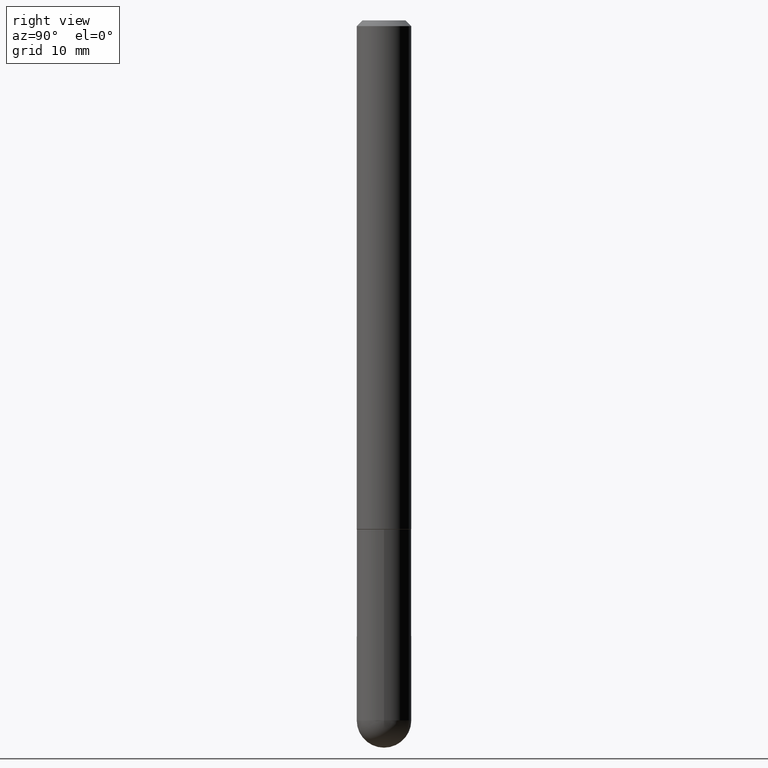
[diagram: clean part render]
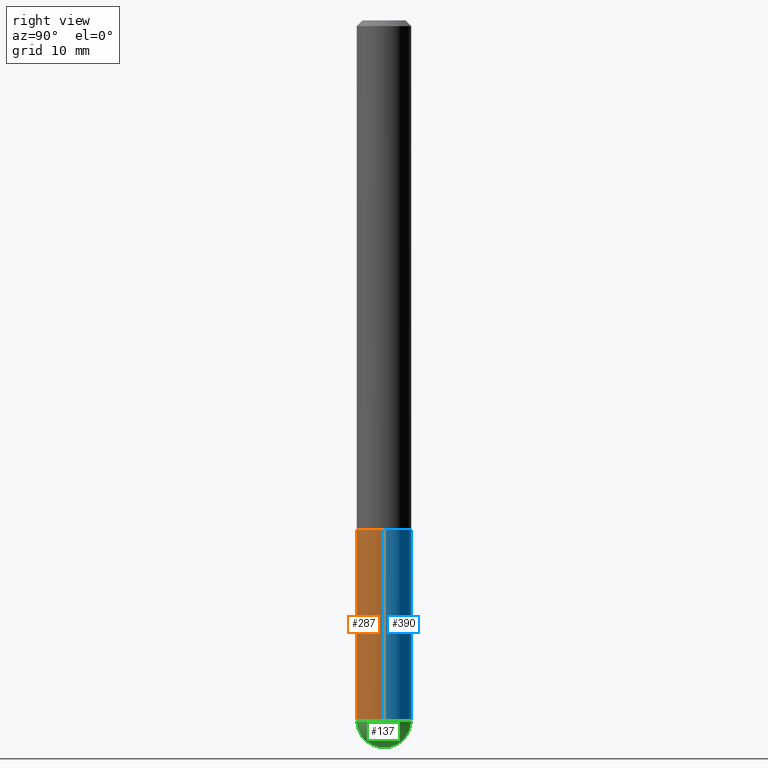
[diagram: same view with three faces highlighted in distinct colors, each labeled with its STEP entity id]
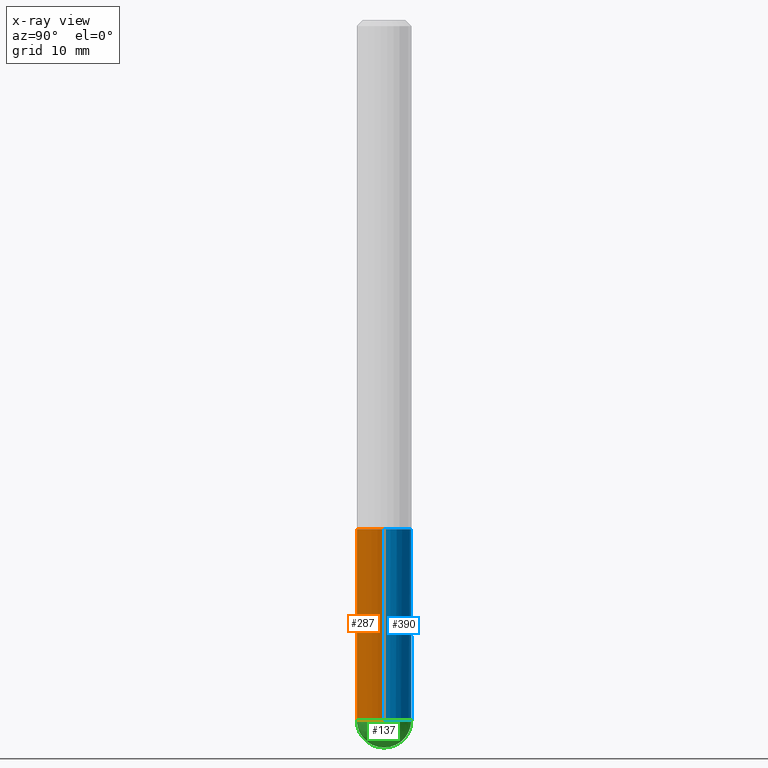
[diagram: x-ray of the same camera — body ghosted, the three highlighted faces saturated]
A machine part, right view with three faces highlighted in distinct colors.
The next image is the same camera in x-ray (body ghosted, the three faces saturated) — at least one of them is partly hidden behind the body in this view.
Their STEP definitions:

[orange] entity #287 — the highlighted cylindrical surface (edge-blend (fillet) strip) has radius 2.3813 mm, axis along (-0, 0, 1).
#6 = DIRECTION ( 'NONE',  ( 1.000000000000000000, -6.982962677686263555E-15, 0.000000000000000000 ) ) ;
#11 = EDGE_LOOP ( 'NONE', ( #189, #75, #196, #110, #290 ) ) ;
#27 = CARTESIAN_POINT ( 'NONE',  ( 0.000000000000000000, 0.000000000000000000, 0.000000000000000000 ) ) ;
#30 = CARTESIAN_POINT ( 'NONE',  ( 0.09374999999999998612, -6.764745094008592175E-15, -1.750000000000000222 ) ) ;
#32 = LINE ( 'NONE', #303, #354 ) ;
#52 = CYLINDRICAL_SURFACE ( 'NONE', #347, 0.09375000000000002776 ) ;
#54 = CARTESIAN_POINT ( 'NONE',  ( 5.884409314882984936E-29, -8.401376971591317641E-15, -2.406249999999999556 ) ) ;
#71 = AXIS2_PLACEMENT_3D ( 'NONE', #54, #118, #299 ) ;
#75 = ORIENTED_EDGE ( 'NONE', *, *, #111, .T. ) ;
#110 = ORIENTED_EDGE ( 'NONE', *, *, #185, .T. ) ;
#111 = EDGE_CURVE ( 'NONE', #223, #362, #334, .T. ) ;
#118 = DIRECTION ( 'NONE',  ( -2.445468806185136597E-29, 3.491481338843145583E-15, 1.000000000000000000 ) ) ;
#123 = CARTESIAN_POINT ( 'NONE',  ( 4.279570410823989044E-29, -6.110092342975505460E-15, -1.750000000000000222 ) ) ;
#127 = CIRCLE ( 'NONE', #262, 0.09375000000000005551 ) ;
#132 = CARTESIAN_POINT ( 'NONE',  ( 5.884409314882984936E-29, -8.401376971591317641E-15, -2.406249999999999556 ) ) ;
#138 = CARTESIAN_POINT ( 'NONE',  ( -0.09374999999999998612, -6.589600842508317626E-15, -1.750000000000000222 ) ) ;
#153 = DIRECTION ( 'NONE',  ( 1.000000000000000000, -6.982962677686265922E-15, 4.876176775795935793E-29 ) ) ;
#160 = CARTESIAN_POINT ( 'NONE',  ( 0.09375000000000002776, -6.546527510330876027E-16, 4.571415727308691207E-30 ) ) ;
#185 = EDGE_CURVE ( 'NONE', #197, #352, #215, .T. ) ;
#189 = ORIENTED_EDGE ( 'NONE', *, *, #392, .F. ) ;
#196 = ORIENTED_EDGE ( 'NONE', *, *, #250, .T. ) ;
#197 = VERTEX_POINT ( 'NONE', #316 ) ;
#210 = DIRECTION ( 'NONE',  ( -2.445468806185136877E-29, 3.491481338843145188E-15, 1.000000000000000000 ) ) ;
#215 = LINE ( 'NONE', #160, #297 ) ;
#217 = CARTESIAN_POINT ( 'NONE',  ( -0.09375000000000005551, -6.589600842508317626E-15, -2.406249999999999556 ) ) ;
#223 = VERTEX_POINT ( 'NONE', #217 ) ;
#233 = DIRECTION ( 'NONE',  ( -2.445468806185136597E-29, 3.491481338843145583E-15, 1.000000000000000000 ) ) ;
#244 = DIRECTION ( 'NONE',  ( -2.445468806185136597E-29, 3.491481338843145583E-15, 1.000000000000000000 ) ) ;
#250 = EDGE_CURVE ( 'NONE', #362, #197, #127, .T. ) ;
#253 = DIRECTION ( 'NONE',  ( -2.445468806185136597E-29, 3.491481338843145583E-15, 1.000000000000000000 ) ) ;
#262 = AXIS2_PLACEMENT_3D ( 'NONE', #132, #253, #384 ) ;
#263 = VERTEX_POINT ( 'NONE', #138 ) ;
#281 = CARTESIAN_POINT ( 'NONE',  ( -6.661338147750378165E-16, -0.09375000000000881240, -2.406249999999999556 ) ) ;
#282 = DIRECTION ( 'NONE',  ( -2.445468806185136877E-29, 3.491481338843145188E-15, 1.000000000000000000 ) ) ;
#287 = ADVANCED_FACE ( 'NONE', ( #397 ), #52, .T. ) ;
#290 = ORIENTED_EDGE ( 'NONE', *, *, #383, .F. ) ;
#297 = VECTOR ( 'NONE', #282, 39.37007874015748143 ) ;
#299 = DIRECTION ( 'NONE',  ( 1.000000000000000000, -6.982962677686258033E-15, 0.000000000000000000 ) ) ;
#303 = CARTESIAN_POINT ( 'NONE',  ( -0.09375000000000002776, 6.661338147750941215E-16, -4.611501647113975397E-30 ) ) ;
#316 = CARTESIAN_POINT ( 'NONE',  ( 0.09375000000000005551, -7.910387408316499054E-15, -2.406249999999999556 ) ) ;
#334 = CIRCLE ( 'NONE', #71, 0.09375000000000005551 ) ;
#336 = AXIS2_PLACEMENT_3D ( 'NONE', #123, #244, #6 ) ;
#347 = AXIS2_PLACEMENT_3D ( 'NONE', #27, #233, #153 ) ;
#352 = VERTEX_POINT ( 'NONE', #30 ) ;
#354 = VECTOR ( 'NONE', #210, 39.37007874015748143 ) ;
#362 = VERTEX_POINT ( 'NONE', #281 ) ;
#383 = EDGE_CURVE ( 'NONE', #263, #352, #389, .T. ) ;
#384 = DIRECTION ( 'NONE',  ( 1.000000000000000000, -6.982962677686258033E-15, 0.000000000000000000 ) ) ;
#389 = CIRCLE ( 'NONE', #336, 0.09374999999999998612 ) ;
#392 = EDGE_CURVE ( 'NONE', #223, #263, #32, .T. ) ;
#397 = FACE_OUTER_BOUND ( 'NONE', #11, .T. ) ;

[blue] entity #390 — the highlighted cylindrical surface (edge-blend (fillet) strip) has radius 2.3813 mm, axis along (-0, 0, 1).
#1 = AXIS2_PLACEMENT_3D ( 'NONE', #64, #156, #408 ) ;
#2 = EDGE_CURVE ( 'NONE', #197, #225, #271, .T. ) ;
#10 = CYLINDRICAL_SURFACE ( 'NONE', #321, 0.09375000000000002776 ) ;
#30 = CARTESIAN_POINT ( 'NONE',  ( 0.09374999999999998612, -6.764745094008592175E-15, -1.750000000000000222 ) ) ;
#32 = LINE ( 'NONE', #303, #354 ) ;
#53 = AXIS2_PLACEMENT_3D ( 'NONE', #310, #90, #269 ) ;
#59 = CARTESIAN_POINT ( 'NONE',  ( 0.000000000000000000, 0.000000000000000000, 0.000000000000000000 ) ) ;
#64 = CARTESIAN_POINT ( 'NONE',  ( 4.279570410823989044E-29, -6.110092342975505460E-15, -1.750000000000000222 ) ) ;
#79 = FACE_OUTER_BOUND ( 'NONE', #264, .T. ) ;
#90 = DIRECTION ( 'NONE',  ( -2.445468806185136597E-29, 3.491481338843145583E-15, 1.000000000000000000 ) ) ;
#119 = CIRCLE ( 'NONE', #231, 0.09375000000000005551 ) ;
#125 = CARTESIAN_POINT ( 'NONE',  ( 5.884409314882984936E-29, -8.401376971591317641E-15, -2.406249999999999556 ) ) ;
#138 = CARTESIAN_POINT ( 'NONE',  ( -0.09374999999999998612, -6.589600842508317626E-15, -1.750000000000000222 ) ) ;
#140 = CIRCLE ( 'NONE', #1, 0.09374999999999998612 ) ;
#142 = ORIENTED_EDGE ( 'NONE', *, *, #2, .T. ) ;
#156 = DIRECTION ( 'NONE',  ( -2.445468806185136597E-29, 3.491481338843145583E-15, 1.000000000000000000 ) ) ;
#160 = CARTESIAN_POINT ( 'NONE',  ( 0.09375000000000002776, -6.546527510330876027E-16, 4.571415727308691207E-30 ) ) ;
#167 = ORIENTED_EDGE ( 'NONE', *, *, #382, .F. ) ;
#172 = ORIENTED_EDGE ( 'NONE', *, *, #185, .F. ) ;
#185 = EDGE_CURVE ( 'NONE', #197, #352, #215, .T. ) ;
#197 = VERTEX_POINT ( 'NONE', #316 ) ;
#210 = DIRECTION ( 'NONE',  ( -2.445468806185136877E-29, 3.491481338843145188E-15, 1.000000000000000000 ) ) ;
#215 = LINE ( 'NONE', #160, #297 ) ;
#217 = CARTESIAN_POINT ( 'NONE',  ( -0.09375000000000005551, -6.589600842508317626E-15, -2.406249999999999556 ) ) ;
#223 = VERTEX_POINT ( 'NONE', #217 ) ;
#225 = VERTEX_POINT ( 'NONE', #252 ) ;
#228 = EDGE_CURVE ( 'NONE', #225, #223, #119, .T. ) ;
#231 = AXIS2_PLACEMENT_3D ( 'NONE', #125, #381, #353 ) ;
#252 = CARTESIAN_POINT ( 'NONE',  ( 6.546527510331458798E-16, 0.09374999999999153455, -2.406250000000000000 ) ) ;
#256 = ORIENTED_EDGE ( 'NONE', *, *, #228, .T. ) ;
#263 = VERTEX_POINT ( 'NONE', #138 ) ;
#264 = EDGE_LOOP ( 'NONE', ( #256, #359, #167, #172, #142 ) ) ;
#269 = DIRECTION ( 'NONE',  ( 1.000000000000000000, -6.982962677686258033E-15, 0.000000000000000000 ) ) ;
#271 = CIRCLE ( 'NONE', #53, 0.09375000000000005551 ) ;
#282 = DIRECTION ( 'NONE',  ( -2.445468806185136877E-29, 3.491481338843145188E-15, 1.000000000000000000 ) ) ;
#297 = VECTOR ( 'NONE', #282, 39.37007874015748143 ) ;
#303 = CARTESIAN_POINT ( 'NONE',  ( -0.09375000000000002776, 6.661338147750941215E-16, -4.611501647113975397E-30 ) ) ;
#310 = CARTESIAN_POINT ( 'NONE',  ( 5.884409314882984936E-29, -8.401376971591317641E-15, -2.406249999999999556 ) ) ;
#316 = CARTESIAN_POINT ( 'NONE',  ( 0.09375000000000005551, -7.910387408316499054E-15, -2.406249999999999556 ) ) ;
#321 = AXIS2_PLACEMENT_3D ( 'NONE', #59, #342, #335 ) ;
#335 = DIRECTION ( 'NONE',  ( 1.000000000000000000, -6.982962677686265922E-15, 4.876176775795935793E-29 ) ) ;
#342 = DIRECTION ( 'NONE',  ( -2.445468806185136597E-29, 3.491481338843145583E-15, 1.000000000000000000 ) ) ;
#352 = VERTEX_POINT ( 'NONE', #30 ) ;
#353 = DIRECTION ( 'NONE',  ( 1.000000000000000000, -6.982962677686258033E-15, 0.000000000000000000 ) ) ;
#354 = VECTOR ( 'NONE', #210, 39.37007874015748143 ) ;
#359 = ORIENTED_EDGE ( 'NONE', *, *, #392, .T. ) ;
#381 = DIRECTION ( 'NONE',  ( -2.445468806185136597E-29, 3.491481338843145583E-15, 1.000000000000000000 ) ) ;
#382 = EDGE_CURVE ( 'NONE', #352, #263, #140, .T. ) ;
#390 = ADVANCED_FACE ( 'NONE', ( #79 ), #10, .T. ) ;
#392 = EDGE_CURVE ( 'NONE', #223, #263, #32, .T. ) ;
#408 = DIRECTION ( 'NONE',  ( 1.000000000000000000, -6.982962677686263555E-15, 0.000000000000000000 ) ) ;

[green] entity #137 — the highlighted spherical surface has radius 2.3813 mm.
#2 = EDGE_CURVE ( 'NONE', #197, #225, #271, .T. ) ;
#7 = CARTESIAN_POINT ( 'NONE',  ( 5.553289536969099810E-29, -8.875559339731369515E-15, -2.406250000000000000 ) ) ;
#13 = AXIS2_PLACEMENT_3D ( 'NONE', #186, #236, #369 ) ;
#53 = AXIS2_PLACEMENT_3D ( 'NONE', #310, #90, #269 ) ;
#60 = FACE_OUTER_BOUND ( 'NONE', #388, .T. ) ;
#68 = DIRECTION ( 'NONE',  ( 1.000000000000000000, -6.982962677686265922E-15, 4.883557194083112340E-29 ) ) ;
#69 = ORIENTED_EDGE ( 'NONE', *, *, #101, .F. ) ;
#78 = ORIENTED_EDGE ( 'NONE', *, *, #250, .F. ) ;
#85 = CARTESIAN_POINT ( 'NONE',  ( 5.786560829529485345E-29, -9.197145183376910845E-15, -2.500000000000000000 ) ) ;
#90 = DIRECTION ( 'NONE',  ( -2.445468806185136597E-29, 3.491481338843145583E-15, 1.000000000000000000 ) ) ;
#101 = EDGE_CURVE ( 'NONE', #134, #362, #327, .T. ) ;
#108 = ORIENTED_EDGE ( 'NONE', *, *, #144, .T. ) ;
#117 = CIRCLE ( 'NONE', #246, 0.09375000000000029143 ) ;
#126 = DIRECTION ( 'NONE',  ( -1.000000000000000000, 6.982962677686265133E-15, -4.883557194083112901E-29 ) ) ;
#127 = CIRCLE ( 'NONE', #262, 0.09375000000000005551 ) ;
#132 = CARTESIAN_POINT ( 'NONE',  ( 5.884409314882984936E-29, -8.401376971591317641E-15, -2.406249999999999556 ) ) ;
#134 = VERTEX_POINT ( 'NONE', #85 ) ;
#137 = ADVANCED_FACE ( 'NONE', ( #60 ), #181, .T. ) ;
#144 = EDGE_CURVE ( 'NONE', #134, #225, #117, .T. ) ;
#181 = SPHERICAL_SURFACE ( 'NONE', #320, 0.09375000000000029143 ) ;
#186 = CARTESIAN_POINT ( 'NONE',  ( 5.553289536969099810E-29, -8.875559339731369515E-15, -2.406250000000000000 ) ) ;
#197 = VERTEX_POINT ( 'NONE', #316 ) ;
#225 = VERTEX_POINT ( 'NONE', #252 ) ;
#236 = DIRECTION ( 'NONE',  ( -1.000000000000000000, 7.105427357601001070E-15, -4.926315508542082329E-29 ) ) ;
#246 = AXIS2_PLACEMENT_3D ( 'NONE', #7, #68, #248 ) ;
#248 = DIRECTION ( 'NONE',  ( 6.982962677686265922E-15, 1.000000000000000000, 0.000000000000000000 ) ) ;
#250 = EDGE_CURVE ( 'NONE', #362, #197, #127, .T. ) ;
#252 = CARTESIAN_POINT ( 'NONE',  ( 6.546527510331458798E-16, 0.09374999999999153455, -2.406250000000000000 ) ) ;
#253 = DIRECTION ( 'NONE',  ( -2.445468806185136597E-29, 3.491481338843145583E-15, 1.000000000000000000 ) ) ;
#262 = AXIS2_PLACEMENT_3D ( 'NONE', #132, #253, #384 ) ;
#269 = DIRECTION ( 'NONE',  ( 1.000000000000000000, -6.982962677686258033E-15, 0.000000000000000000 ) ) ;
#271 = CIRCLE ( 'NONE', #53, 0.09375000000000005551 ) ;
#281 = CARTESIAN_POINT ( 'NONE',  ( -6.661338147750378165E-16, -0.09375000000000881240, -2.406249999999999556 ) ) ;
#295 = ORIENTED_EDGE ( 'NONE', *, *, #2, .F. ) ;
#310 = CARTESIAN_POINT ( 'NONE',  ( 5.884409314882984936E-29, -8.401376971591317641E-15, -2.406249999999999556 ) ) ;
#313 = CARTESIAN_POINT ( 'NONE',  ( 5.553289536969099810E-29, -8.875559339731369515E-15, -2.406250000000000000 ) ) ;
#316 = CARTESIAN_POINT ( 'NONE',  ( 0.09375000000000005551, -7.910387408316499054E-15, -2.406249999999999556 ) ) ;
#320 = AXIS2_PLACEMENT_3D ( 'NONE', #313, #126, #387 ) ;
#327 = CIRCLE ( 'NONE', #13, 0.09375000000000029143 ) ;
#362 = VERTEX_POINT ( 'NONE', #281 ) ;
#369 = DIRECTION ( 'NONE',  ( -7.105427357601001070E-15, -1.000000000000000000, 0.000000000000000000 ) ) ;
#384 = DIRECTION ( 'NONE',  ( 1.000000000000000000, -6.982962677686258033E-15, 0.000000000000000000 ) ) ;
#387 = DIRECTION ( 'NONE',  ( 6.982962677686265133E-15, 1.000000000000000000, -2.913971193241871694E-15 ) ) ;
#388 = EDGE_LOOP ( 'NONE', ( #69, #108, #295, #78 ) ) ;